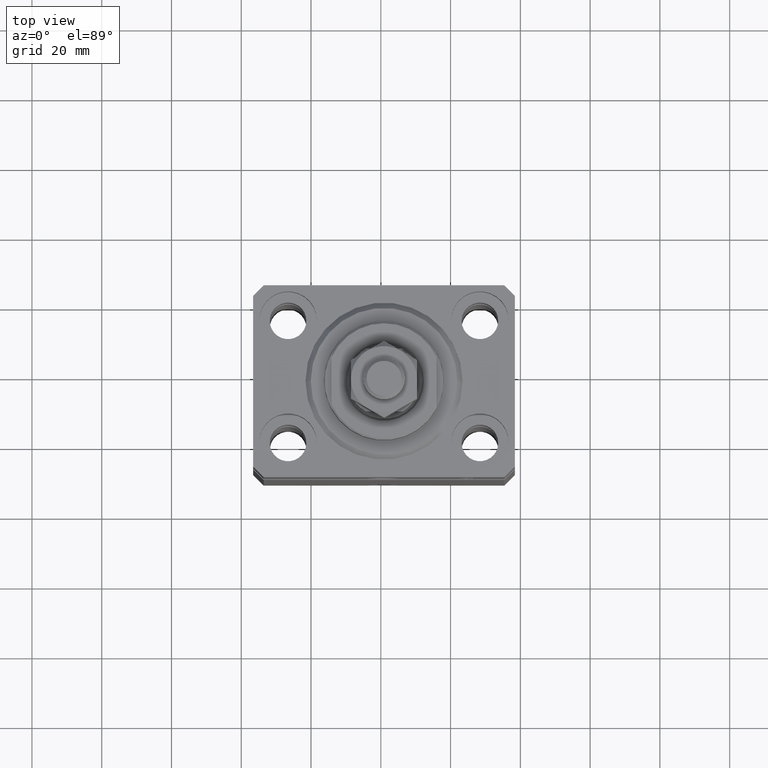
[diagram: clean part render]
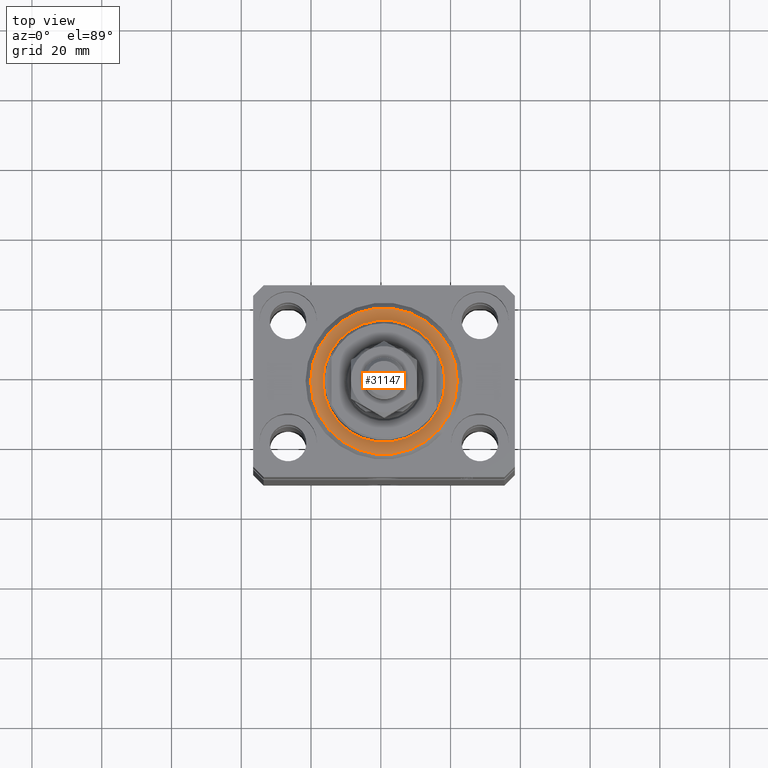
[diagram: same view with one face highlighted and labeled with its STEP entity id]
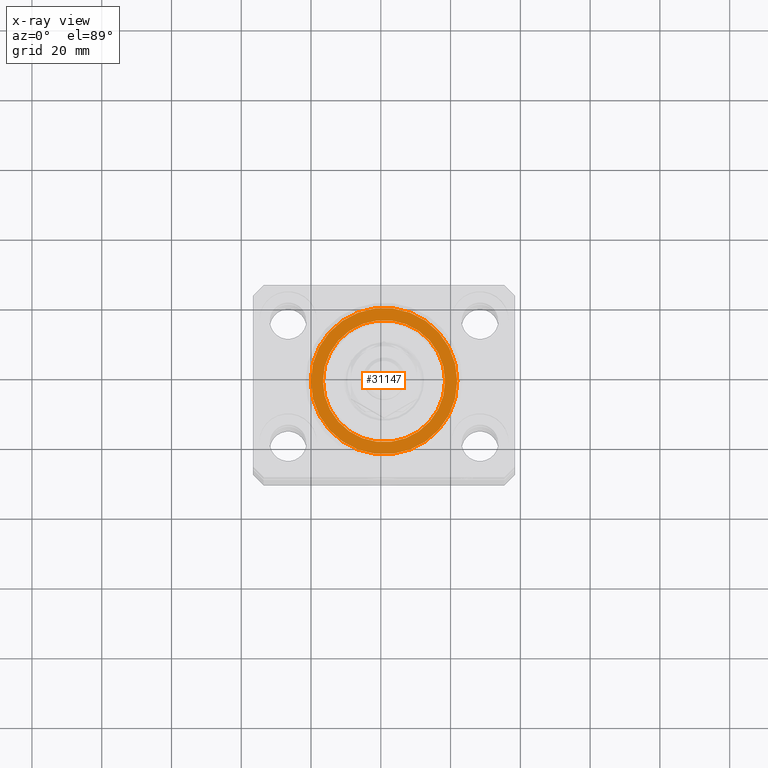
[diagram: x-ray of the same camera — body ghosted, the highlighted face saturated]
A machine part, top view. The second image highlights one B-rep face of the part: STEP entity #31147.
The next image is the same camera in x-ray: the body ghosted, the highlighted face saturated — about 0% of this face is hidden behind the body in this view.
In plain terms, the highlighted planar face has unit normal (0, 0, -1).
Its self-contained STEP definition (entity closure, byte-faithful):
#60 = CARTESIAN_POINT ( 'NONE',  ( 0.000000000000000000, 0.000000000000000000, 0.000000000000000000 ) ) ;
#968 = PLANE ( 'NONE',  #24371 ) ;
#1252 = EDGE_CURVE ( 'NONE', #27278, #23727, #43775, .T. ) ;
#1886 = AXIS2_PLACEMENT_3D ( 'NONE', #14544, #31603, #11533 ) ;
#7459 = FACE_BOUND ( 'NONE', #26861, .T. ) ;
#8125 = DIRECTION ( 'NONE',  ( 0.000000000000000000, 0.000000000000000000, 1.000000000000000000 ) ) ;
#8286 = EDGE_CURVE ( 'NONE', #40983, #27415, #21726, .T. ) ;
#9297 = AXIS2_PLACEMENT_3D ( 'NONE', #15398, #12378, #15614 ) ;
#9935 = CARTESIAN_POINT ( 'NONE',  ( 20.99999999999995381, 0.000000000000000000, 0.000000000000000000 ) ) ;
#9982 = ORIENTED_EDGE ( 'NONE', *, *, #1252, .T. ) ;
#11533 = DIRECTION ( 'NONE',  ( 1.000000000000000000, 0.000000000000000000, 0.000000000000000000 ) ) ;
#11818 = CARTESIAN_POINT ( 'NONE',  ( 0.000000000000000000, 0.000000000000000000, 0.000000000000000000 ) ) ;
#12378 = DIRECTION ( 'NONE',  ( -0.000000000000000000, -0.000000000000000000, -1.000000000000000000 ) ) ;
#14403 = EDGE_CURVE ( 'NONE', #27415, #40983, #15152, .T. ) ;
#14544 = CARTESIAN_POINT ( 'NONE',  ( 0.000000000000000000, 0.000000000000000000, 0.000000000000000000 ) ) ;
#14625 = FACE_OUTER_BOUND ( 'NONE', #38397, .T. ) ;
#15152 = CIRCLE ( 'NONE', #1886, 17.50000000000000000 ) ;
#15398 = CARTESIAN_POINT ( 'NONE',  ( 0.000000000000000000, 0.000000000000000000, 0.000000000000000000 ) ) ;
#15614 = DIRECTION ( 'NONE',  ( 1.000000000000000000, 0.000000000000000000, 0.000000000000000000 ) ) ;
#15652 = EDGE_CURVE ( 'NONE', #23727, #27278, #16676, .T. ) ;
#16676 = CIRCLE ( 'NONE', #9297, 20.99999999999995381 ) ;
#16824 = DIRECTION ( 'NONE',  ( -0.000000000000000000, -0.000000000000000000, -1.000000000000000000 ) ) ;
#21092 = DIRECTION ( 'NONE',  ( 0.000000000000000000, 0.000000000000000000, 1.000000000000000000 ) ) ;
#21697 = AXIS2_PLACEMENT_3D ( 'NONE', #34352, #16824, #30898 ) ;
#21726 = CIRCLE ( 'NONE', #27609, 17.50000000000000000 ) ;
#23727 = VERTEX_POINT ( 'NONE', #9935 ) ;
#24371 = AXIS2_PLACEMENT_3D ( 'NONE', #60, #21092, #35370 ) ;
#26861 = EDGE_LOOP ( 'NONE', ( #30611, #28975 ) ) ;
#27278 = VERTEX_POINT ( 'NONE', #38647 ) ;
#27415 = VERTEX_POINT ( 'NONE', #36549 ) ;
#27609 = AXIS2_PLACEMENT_3D ( 'NONE', #11818, #8125, #36487 ) ;
#28975 = ORIENTED_EDGE ( 'NONE', *, *, #14403, .T. ) ;
#30611 = ORIENTED_EDGE ( 'NONE', *, *, #8286, .T. ) ;
#30898 = DIRECTION ( 'NONE',  ( 1.000000000000000000, 0.000000000000000000, 0.000000000000000000 ) ) ;
#31147 = ADVANCED_FACE ( 'NONE', ( #7459, #14625 ), #968, .F. ) ;
#31169 = CARTESIAN_POINT ( 'NONE',  ( 17.50000000000000000, 0.000000000000000000, -2.168404344971008868E-16 ) ) ;
#31603 = DIRECTION ( 'NONE',  ( 0.000000000000000000, 0.000000000000000000, 1.000000000000000000 ) ) ;
#34352 = CARTESIAN_POINT ( 'NONE',  ( 0.000000000000000000, 0.000000000000000000, 0.000000000000000000 ) ) ;
#35370 = DIRECTION ( 'NONE',  ( 1.000000000000000000, 0.000000000000000000, -0.000000000000000000 ) ) ;
#36487 = DIRECTION ( 'NONE',  ( 1.000000000000000000, 0.000000000000000000, 0.000000000000000000 ) ) ;
#36549 = CARTESIAN_POINT ( 'NONE',  ( -17.50000000000000000, 2.143131898507868643E-15, -2.168404344971008868E-16 ) ) ;
#38397 = EDGE_LOOP ( 'NONE', ( #41740, #9982 ) ) ;
#38647 = CARTESIAN_POINT ( 'NONE',  ( -20.99999999999995381, 2.663606788145490261E-15, 0.000000000000000000 ) ) ;
#40983 = VERTEX_POINT ( 'NONE', #31169 ) ;
#41740 = ORIENTED_EDGE ( 'NONE', *, *, #15652, .T. ) ;
#43775 = CIRCLE ( 'NONE', #21697, 20.99999999999995381 ) ;